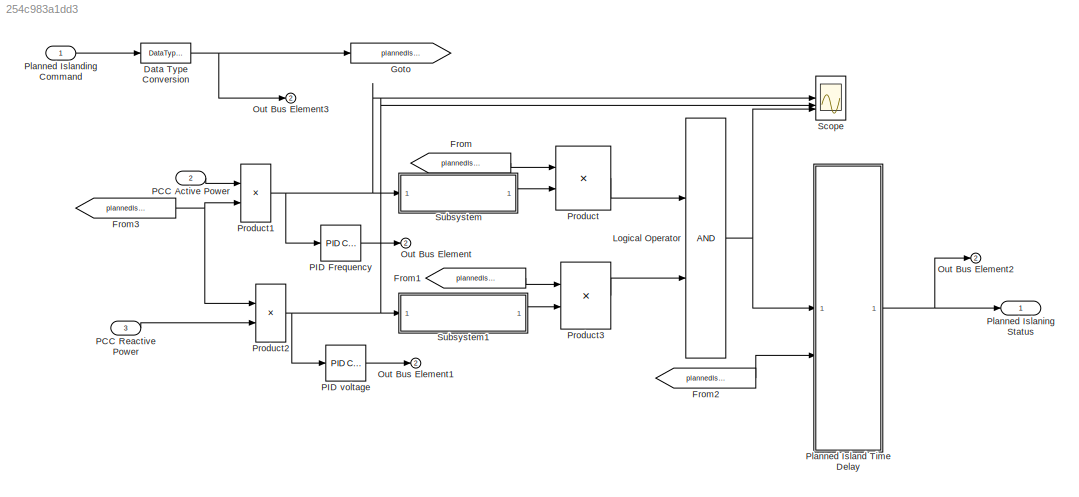
MODEL slx_254c983a1dd3
KIND model
CONFIG AbsTol = auto
CONFIG EnableMultiTasking = off
CONFIG FixedStep = auto
CONFIG MaxStep = auto
CONFIG MinStep = auto
CONFIG RelTol = 1e-3
CONFIG SampleTimeConstraint = Unconstrained
CONFIG SolverName = FixedStepAuto
CONFIG StartTime = 0.0
CONFIG StopTime = 10.0
WORKSPACE source: mxarray member
WORKSPACE KiPPlannedIsland = 1
WORKSPACE KiQPlannedIsland = 0
WORKSPACE KpPPlannedIsland = 1
WORKSPACE KpQPlannedIsland = 1
WORKSPACE Ts = 0.001
WORKSPACE ZeroActivePowerThreshold = 0.001
WORKSPACE ZeroReactivePowerThreshold = 0.001
BLOCK [DataTypeConversion] Data Type Conversion
  OutDataTypeStr = double
  RndMeth = Floor
  SaturateOnIntegerOverflow = off
BLOCK [From] From
  GotoTag = plannedIslanding
BLOCK [From] From1
  GotoTag = plannedIslanding
BLOCK [From] From2
  GotoTag = plannedIslanding
BLOCK [From] From3
  GotoTag = plannedIslanding
BLOCK [Goto] Goto
  GotoTag = plannedIslanding
BLOCK [Logic] Logical Operator
  AllPortsSameDT = off
  OutDataTypeStr = boolean
BLOCK [Outport] Out Bus Element
  Port = 2
BLOCK [Outport] Out Bus Element1
  Port = 2
BLOCK [Outport] Out Bus Element2
  Port = 2
BLOCK [Outport] Out Bus Element3
  Port = 2
BLOCK [Inport] PCC Active Power
  Port = 2
BLOCK [Inport] PCC Reactive Power
  Port = 3
BLOCK [Reference] PID Frequency  REF=slpidlib/PID Controller
  SourceBlock = slpidlib/PID Controller
  SourceType = PID 1dof
BLOCK [Reference] PID voltage  REF=slpidlib/PID Controller
  SourceBlock = slpidlib/PID Controller
  SourceType = PID 1dof
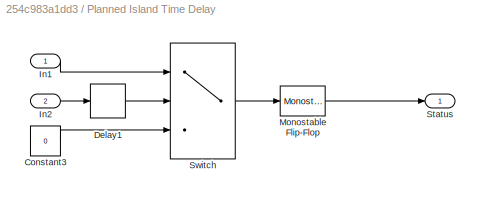
BLOCK [SubSystem] Planned Island Time Delay
BLOCK [Constant] Planned Island Time Delay/Constant3
  Value = 0
BLOCK [Delay] Planned Island Time Delay/Delay1
  DelayLength = 100
  InputPortMap = u0
  SampleTime = Ts
BLOCK [Inport] Planned Island Time Delay/In1
BLOCK [Inport] Planned Island Time Delay/In2
  Port = 2
BLOCK [Reference] Planned Island Time Delay/Monostable Flip-Flop  REF=eeGeneralControl/Monostable Flip-Flop
  LibrarySourceBlock = ee_sl_lib/General Control/Monostable Flip-Flop
  SourceBlock = eeGeneralControl/Monostable Flip-Flop
  SourceType = Monostable Flip-Flop
BLOCK [Outport] Planned Island Time Delay/Status
BLOCK [Switch] Planned Island Time Delay/Switch
  Criteria = u2 > Threshold
  InputSameDT = off
  SaturateOnIntegerOverflow = off
  Threshold = 0.5
BLOCK [Inport] Planned Islanding Command
  OutDataTypeStr = boolean
BLOCK [Outport] Planned Islaning Status
BLOCK [Product] Product
BLOCK [Product] Product1
BLOCK [Product] Product2
BLOCK [Product] Product3
BLOCK [Scope] Scope
  Floating = off
  GraphicalSettings = {"GraphicalSettings":{"LegacySettings":true,"Style":{"Style":{"AxesColor":"[0 0 0]","ChannelNames":[""],"ColorOrder":"[1 0.909803921568627 0.392156862745098;0.149019607843137 0.549019607843137 0.866666666666667;0.96078431372549 0.466666666666667 0.16078431372549;0.286274509803922 0.858823529411765 0.250980392156863;0.752941176470588 0.36078431372549 0.984313725490196;0.423529411764706 0.9568627450...<+457ch>
  NumInputPorts = 3
  WasSavedAsWebScope = on
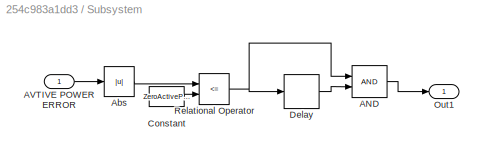
BLOCK [SubSystem] Subsystem
BLOCK [Logic] Subsystem/AND
  AllPortsSameDT = off
  IconShape = distinctive
  OutDataTypeStr = boolean
BLOCK [Inport] Subsystem/AVTIVE POWER ERROR
BLOCK [Abs] Subsystem/Abs
  SaturateOnIntegerOverflow = off
BLOCK [Constant] Subsystem/Constant
  SampleTime = -1
  Value = ZeroActivePowerThreshold
BLOCK [Delay] Subsystem/Delay
  DelayLength = 1000
  InputPortMap = u0
  SampleTime = Ts
BLOCK [Outport] Subsystem/Out1
BLOCK [RelationalOperator] Subsystem/Relational Operator
  InputSameDT = off
  Operator = <=
  OutDataTypeStr = boolean
  RndMeth = Simplest
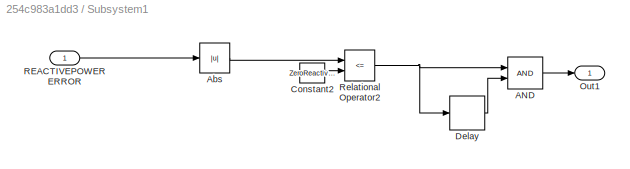
BLOCK [SubSystem] Subsystem1
BLOCK [Logic] Subsystem1/AND
  AllPortsSameDT = off
  IconShape = distinctive
  OutDataTypeStr = boolean
BLOCK [Abs] Subsystem1/Abs
  SaturateOnIntegerOverflow = off
BLOCK [Constant] Subsystem1/Constant2
  Value = ZeroReactivePowerThreshold
BLOCK [Delay] Subsystem1/Delay
  DelayLength = 50
  InputPortMap = u0
  SampleTime = Ts
BLOCK [Outport] Subsystem1/Out1
BLOCK [Inport] Subsystem1/REACTIVEPOWER ERROR
BLOCK [RelationalOperator] Subsystem1/Relational Operator2
  InputSameDT = off
  Operator = <=
  OutDataTypeStr = boolean
  RndMeth = Simplest
NET Data Type Conversion:1 -> Goto:1, Out Bus Element3:1
LINE From1:1 -> Product3:1
LINE From2:1 -> Planned Island Time Delay:2
NET From3:1 -> Product1:2, Product2:1
LINE From:1 -> Product:1
NET Logical Operator:1 -> Planned Island Time Delay:1, Scope:3
LINE PCC Active Power:1 -> Product1:1
LINE PCC Reactive Power:1 -> Product2:2
LINE PID Frequency:1 -> Out Bus Element:1
LINE PID voltage:1 -> Out Bus Element1:1
LINE Planned Island Time Delay/Constant3:1 -> Planned Island Time Delay/Switch:3
LINE Planned Island Time Delay/Delay1:1 -> Planned Island Time Delay/Switch:2
LINE Planned Island Time Delay/In1:1 -> Planned Island Time Delay/Switch:1
LINE Planned Island Time Delay/In2:1 -> Planned Island Time Delay/Delay1:1
LINE Planned Island Time Delay/Monostable Flip-Flop:1 -> Planned Island Time Delay/Status:1
LINE Planned Island Time Delay/Switch:1 -> Planned Island Time Delay/Monostable Flip-Flop:1
NET Planned Island Time Delay:1 -> Out Bus Element2:1, Planned Islaning Status:1
LINE Planned Islanding Command:1 -> Data Type Conversion:1
NET Product1:1 -> PID Frequency:1, Scope:1, Subsystem:1
NET Product2:1 -> PID voltage:1, Scope:2, Subsystem1:1
LINE Product3:1 -> Logical Operator:2
LINE Product:1 -> Logical Operator:1
LINE Subsystem/AND:1 -> Subsystem/Out1:1
LINE Subsystem/AVTIVE POWER ERROR:1 -> Subsystem/Abs:1
LINE Subsystem/Abs:1 -> Subsystem/Relational Operator:1
LINE Subsystem/Constant:1 -> Subsystem/Relational Operator:2
LINE Subsystem/Delay:1 -> Subsystem/AND:2
NET Subsystem/Relational Operator:1 -> Subsystem/AND:1, Subsystem/Delay:1
LINE Subsystem1/AND:1 -> Subsystem1/Out1:1
LINE Subsystem1/Abs:1 -> Subsystem1/Relational Operator2:1
LINE Subsystem1/Constant2:1 -> Subsystem1/Relational Operator2:2
LINE Subsystem1/Delay:1 -> Subsystem1/AND:2
LINE Subsystem1/REACTIVEPOWER ERROR:1 -> Subsystem1/Abs:1
NET Subsystem1/Relational Operator2:1 -> Subsystem1/AND:1, Subsystem1/Delay:1
LINE Subsystem1:1 -> Product3:2
LINE Subsystem:1 -> Product:2
note: NET lines group one-source signal fan-out (src -> all destinations, sorted); 1:1 wires keep LINE
